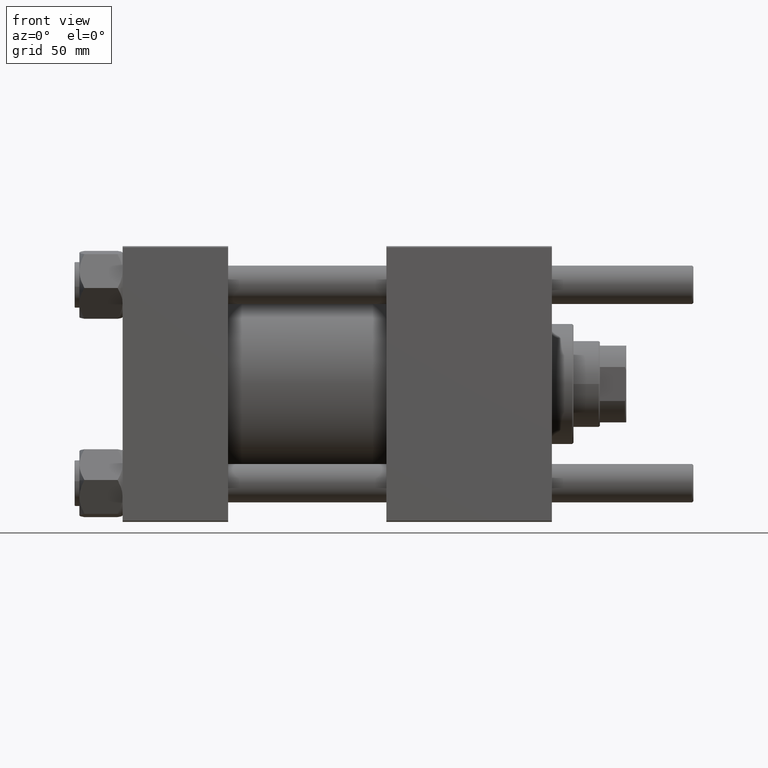
[diagram: clean part render]
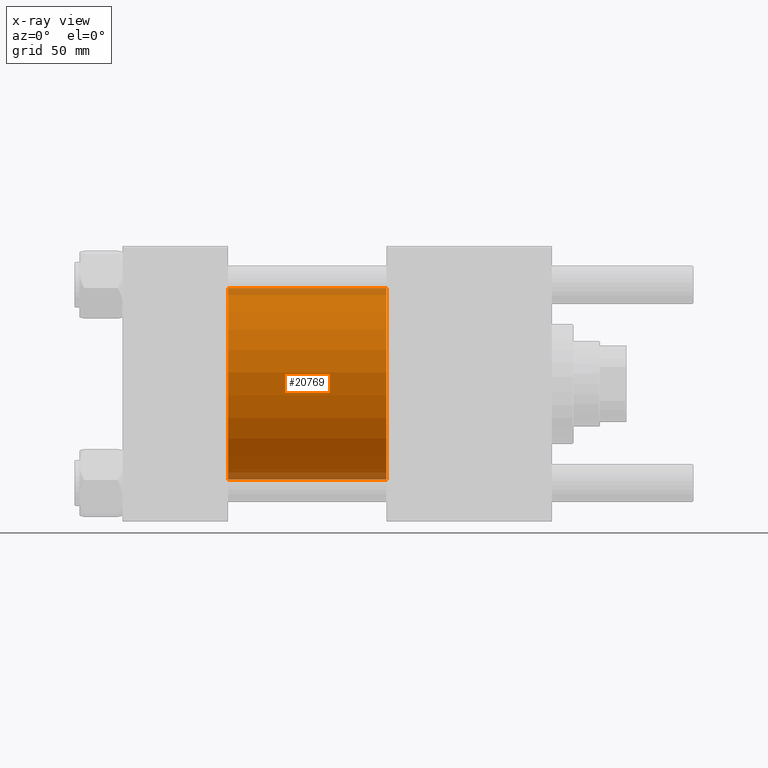
[diagram: x-ray — body ghosted, one internal face saturated and labeled with its STEP entity id]
A machine part, front view, then the same camera in x-ray: the body is ghosted and one INTERNAL B-rep face — a face not visible from any outside direction — is saturated and labeled: STEP entity #20769.
In plain terms, the highlighted cylindrical surface (partial cylindrical patch) has radius 40 mm, axis along (-1, -0, -0).
Its self-contained STEP definition (entity closure, byte-faithful):
#739 = FACE_OUTER_BOUND ( 'NONE', #56776, .T. ) ;
#1377 = VECTOR ( 'NONE', #47683, 1000.000000000000000 ) ;
#3048 = VECTOR ( 'NONE', #44432, 1000.000000000000000 ) ;
#3174 = CARTESIAN_POINT ( 'NONE',  ( 44.00000000000000000, -2.602085213965210642E-15, 40.00000000000000000 ) ) ;
#5638 = AXIS2_PLACEMENT_3D ( 'NONE', #54264, #14376, #23901 ) ;
#7757 = VERTEX_POINT ( 'NONE', #10851 ) ;
#8375 = ORIENTED_EDGE ( 'NONE', *, *, #20701, .F. ) ;
#10417 = ORIENTED_EDGE ( 'NONE', *, *, #25704, .F. ) ;
#10851 = CARTESIAN_POINT ( 'NONE',  ( 110.0000000000000000, 2.296501982624201990E-15, -40.00000000000000000 ) ) ;
#11578 = ORIENTED_EDGE ( 'NONE', *, *, #19575, .T. ) ;
#13069 = AXIS2_PLACEMENT_3D ( 'NONE', #18365, #54484, #27024 ) ;
#13106 = AXIS2_PLACEMENT_3D ( 'NONE', #14314, #54203, #36844 ) ;
#14314 = CARTESIAN_POINT ( 'NONE',  ( 44.00000000000000000, -2.602085213965210642E-15, 0.000000000000000000 ) ) ;
#14376 = DIRECTION ( 'NONE',  ( 1.000000000000000000, 0.000000000000000000, 0.000000000000000000 ) ) ;
#14412 = CARTESIAN_POINT ( 'NONE',  ( 110.0000000000000000, -2.602085213965210642E-15, 40.00000000000000000 ) ) ;
#18365 = CARTESIAN_POINT ( 'NONE',  ( 110.0000000000000000, -2.602085213965210642E-15, 0.000000000000000000 ) ) ;
#19575 = EDGE_CURVE ( 'NONE', #31272, #7757, #25018, .T. ) ;
#20701 = EDGE_CURVE ( 'NONE', #55288, #50454, #52752, .T. ) ;
#20769 = ADVANCED_FACE ( 'NONE', ( #739 ), #41188, .F. ) ;
#22234 = CARTESIAN_POINT ( 'NONE',  ( 110.0000000000000000, 2.296501982624201990E-15, -40.00000000000000000 ) ) ;
#23901 = DIRECTION ( 'NONE',  ( 0.000000000000000000, 0.000000000000000000, -1.000000000000000000 ) ) ;
#25018 = CIRCLE ( 'NONE', #5638, 40.00000000000000000 ) ;
#25704 = EDGE_CURVE ( 'NONE', #31272, #55288, #31136, .T. ) ;
#27024 = DIRECTION ( 'NONE',  ( 0.000000000000000000, 0.000000000000000000, 1.000000000000000000 ) ) ;
#29076 = ORIENTED_EDGE ( 'NONE', *, *, #54622, .T. ) ;
#31136 = LINE ( 'NONE', #40674, #3048 ) ;
#31272 = VERTEX_POINT ( 'NONE', #14412 ) ;
#36844 = DIRECTION ( 'NONE',  ( 0.000000000000000000, 0.000000000000000000, -1.000000000000000000 ) ) ;
#40674 = CARTESIAN_POINT ( 'NONE',  ( 110.0000000000000000, -2.602085213965210642E-15, 40.00000000000000000 ) ) ;
#41188 = CYLINDRICAL_SURFACE ( 'NONE', #13069, 40.00000000000000000 ) ;
#43621 = LINE ( 'NONE', #22234, #1377 ) ;
#44432 = DIRECTION ( 'NONE',  ( -1.000000000000000000, -0.000000000000000000, -0.000000000000000000 ) ) ;
#47683 = DIRECTION ( 'NONE',  ( -1.000000000000000000, -0.000000000000000000, -0.000000000000000000 ) ) ;
#50454 = VERTEX_POINT ( 'NONE', #55712 ) ;
#52752 = CIRCLE ( 'NONE', #13106, 40.00000000000000000 ) ;
#54203 = DIRECTION ( 'NONE',  ( 1.000000000000000000, 0.000000000000000000, 0.000000000000000000 ) ) ;
#54264 = CARTESIAN_POINT ( 'NONE',  ( 110.0000000000000000, -2.602085213965210642E-15, 0.000000000000000000 ) ) ;
#54484 = DIRECTION ( 'NONE',  ( -1.000000000000000000, -0.000000000000000000, -0.000000000000000000 ) ) ;
#54622 = EDGE_CURVE ( 'NONE', #7757, #50454, #43621, .T. ) ;
#55288 = VERTEX_POINT ( 'NONE', #3174 ) ;
#55712 = CARTESIAN_POINT ( 'NONE',  ( 44.00000000000000000, 2.296501982624201990E-15, -40.00000000000000000 ) ) ;
#56776 = EDGE_LOOP ( 'NONE', ( #11578, #29076, #8375, #10417 ) ) ;